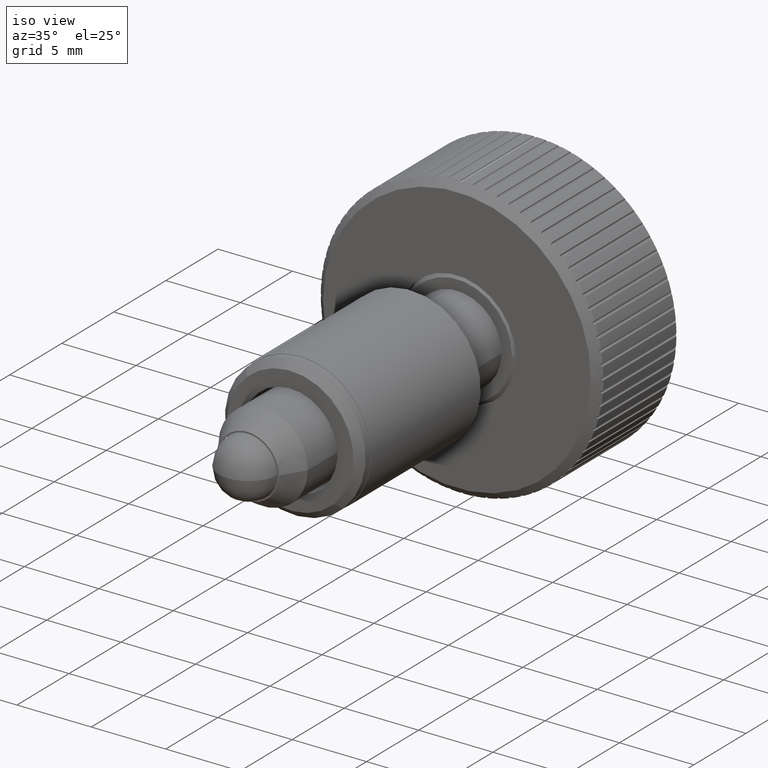
[diagram: clean part render]
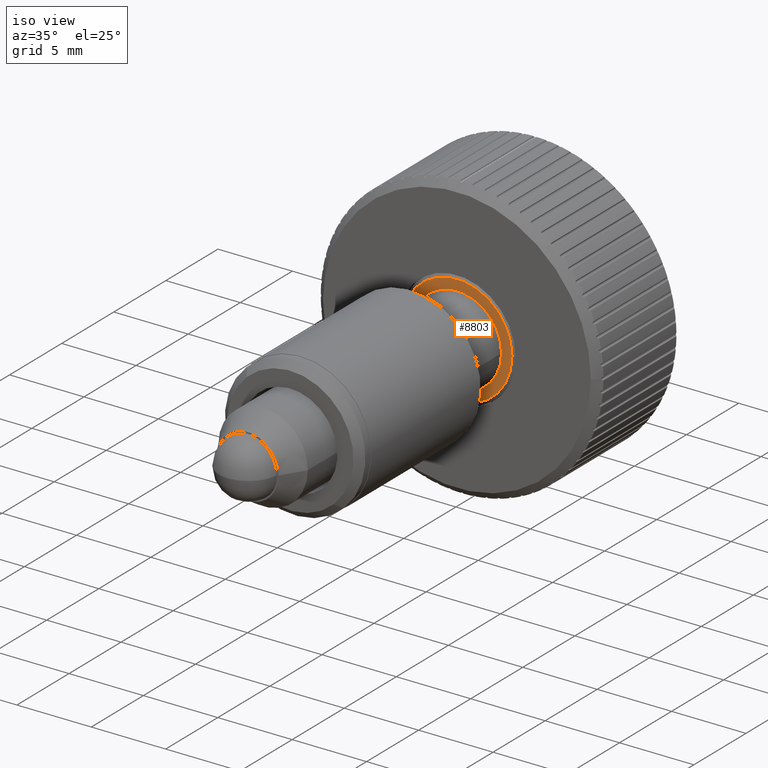
[diagram: same view with one face highlighted and labeled with its STEP entity id]
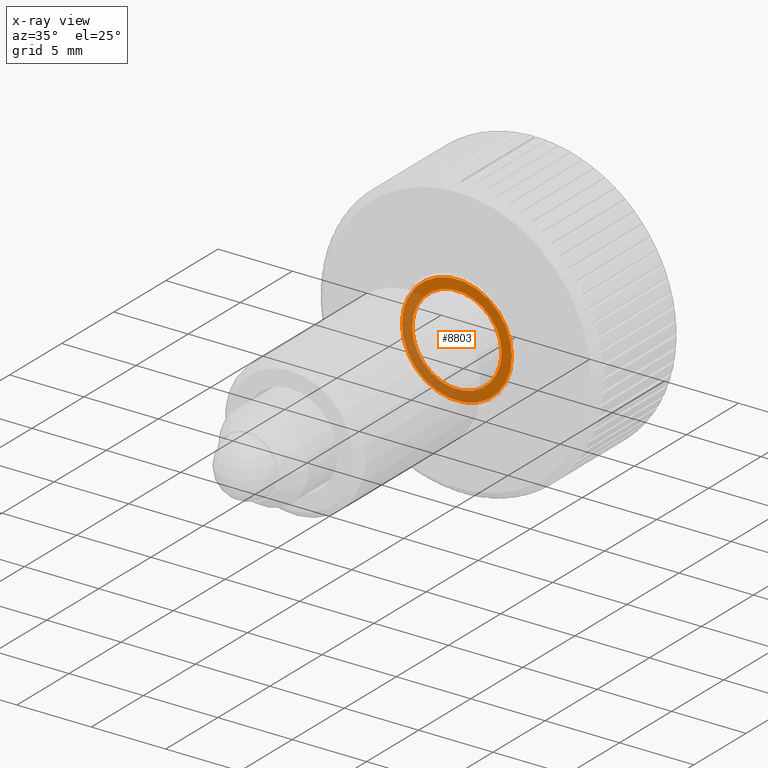
[diagram: x-ray of the same camera — body ghosted, the highlighted face saturated]
A machine part, iso view. The second image highlights one B-rep face of the part: STEP entity #8803.
The next image is the same camera in x-ray: the body ghosted, the highlighted face saturated — about 44% of this face is hidden behind the body in this view.
In plain terms, the highlighted planar face has unit normal (-0, 1, 0).
Its self-contained STEP definition (entity closure, byte-faithful):
#996 = CARTESIAN_POINT ( 'NONE',  ( -7.017877491074693600E-014, 20.10000000000001200, 0.0000000000000000000 ) ) ;
#1134 = CIRCLE ( 'NONE', #6270, 2.999999999999929800 ) ;
#1158 = AXIS2_PLACEMENT_3D ( 'NONE', #9627, #4410, #10506 ) ;
#1209 = DIRECTION ( 'NONE',  ( 3.491481338843133000E-015, -1.000000000000000000, -0.0000000000000000000 ) ) ;
#1285 = ORIENTED_EDGE ( 'NONE', *, *, #10346, .T. ) ;
#1521 = ORIENTED_EDGE ( 'NONE', *, *, #2728, .F. ) ;
#1694 = DIRECTION ( 'NONE',  ( 3.491481338843133000E-015, -1.000000000000000000, -0.0000000000000000000 ) ) ;
#1750 = EDGE_LOOP ( 'NONE', ( #10294, #1285 ) ) ;
#1776 = CIRCLE ( 'NONE', #6965, 2.999999999999929800 ) ;
#1870 = DIRECTION ( 'NONE',  ( -1.000000000000000000, -3.750753461571529100E-015, 0.0000000000000000000 ) ) ;
#2728 = EDGE_CURVE ( 'NONE', #10610, #7454, #1134, .T. ) ;
#3010 = CARTESIAN_POINT ( 'NONE',  ( 2.999999999999859700, 20.10000000000001600, 0.0000000000000000000 ) ) ;
#3145 = VERTEX_POINT ( 'NONE', #4245 ) ;
#3628 = CARTESIAN_POINT ( 'NONE',  ( -7.017877491074693600E-014, 20.10000000000001200, 0.0000000000000000000 ) ) ;
#4245 = CARTESIAN_POINT ( 'NONE',  ( -3.700000000000016600, 20.10000000000000100, 0.0000000000000000000 ) ) ;
#4410 = DIRECTION ( 'NONE',  ( -3.491481338843133000E-015, 1.000000000000000000, 0.0000000000000000000 ) ) ;
#4453 = CARTESIAN_POINT ( 'NONE',  ( 3.699999999999876300, 20.10000000000002600, 4.714890176717225700E-016 ) ) ;
#4513 = DIRECTION ( 'NONE',  ( -1.000000000000000000, -3.750753461571529100E-015, 0.0000000000000000000 ) ) ;
#4962 = EDGE_CURVE ( 'NONE', #7454, #10610, #1776, .T. ) ;
#5859 = CIRCLE ( 'NONE', #10643, 3.699999999999946400 ) ;
#6125 = PLANE ( 'NONE',  #1158 ) ;
#6270 = AXIS2_PLACEMENT_3D ( 'NONE', #6961, #1694, #7831 ) ;
#6452 = CARTESIAN_POINT ( 'NONE',  ( -7.017877491074691100E-014, 20.10000000000000900, 0.0000000000000000000 ) ) ;
#6961 = CARTESIAN_POINT ( 'NONE',  ( -7.017877491074691100E-014, 20.10000000000000900, 0.0000000000000000000 ) ) ;
#6965 = AXIS2_PLACEMENT_3D ( 'NONE', #6452, #1209, #7344 ) ;
#7123 = DIRECTION ( 'NONE',  ( 3.491481338843133000E-015, -1.000000000000000000, -0.0000000000000000000 ) ) ;
#7344 = DIRECTION ( 'NONE',  ( 1.000000000000000000, 3.469446951953695400E-015, 0.0000000000000000000 ) ) ;
#7454 = VERTEX_POINT ( 'NONE', #3010 ) ;
#7598 = FACE_OUTER_BOUND ( 'NONE', #1750, .T. ) ;
#7831 = DIRECTION ( 'NONE',  ( 1.000000000000000000, 3.469446951953695400E-015, 0.0000000000000000000 ) ) ;
#7956 = EDGE_CURVE ( 'NONE', #3145, #10614, #5859, .T. ) ;
#8603 = ORIENTED_EDGE ( 'NONE', *, *, #4962, .F. ) ;
#8803 = ADVANCED_FACE ( 'NONE', ( #7598, #9894 ), #6125, .F. ) ;
#9627 = CARTESIAN_POINT ( 'NONE',  ( -3.000000000000000000, 20.10000000000000500, 0.0000000000000000000 ) ) ;
#9665 = CARTESIAN_POINT ( 'NONE',  ( -3.000000000000000000, 20.09999999999999800, 3.673940397442033700E-016 ) ) ;
#9690 = EDGE_LOOP ( 'NONE', ( #8603, #1521 ) ) ;
#9728 = DIRECTION ( 'NONE',  ( 3.491481338843133000E-015, -1.000000000000000000, -0.0000000000000000000 ) ) ;
#9894 = FACE_BOUND ( 'NONE', #9690, .T. ) ;
#10294 = ORIENTED_EDGE ( 'NONE', *, *, #7956, .T. ) ;
#10346 = EDGE_CURVE ( 'NONE', #10614, #3145, #10618, .T. ) ;
#10506 = DIRECTION ( 'NONE',  ( -1.000000000000000000, -3.491481338843133000E-015, 0.0000000000000000000 ) ) ;
#10610 = VERTEX_POINT ( 'NONE', #9665 ) ;
#10614 = VERTEX_POINT ( 'NONE', #4453 ) ;
#10618 = CIRCLE ( 'NONE', #10687, 3.699999999999946400 ) ;
#10643 = AXIS2_PLACEMENT_3D ( 'NONE', #3628, #9728, #4513 ) ;
#10687 = AXIS2_PLACEMENT_3D ( 'NONE', #996, #7123, #1870 ) ;